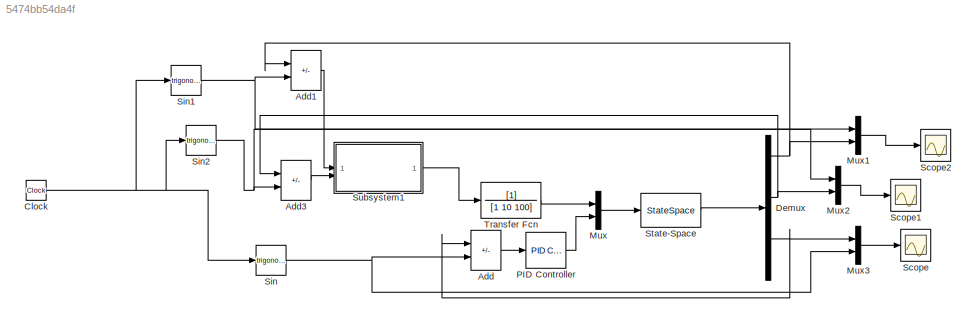
MODEL slx_5474bb54da4f
KIND model
CONFIG AbsTol = auto
CONFIG EnableMultiTasking = off
CONFIG FixedStep = auto
CONFIG MaxStep = auto
CONFIG MinStep = auto
CONFIG RelTol = 1e-3
CONFIG SampleTimeConstraint = Unconstrained
CONFIG SolverName = VariableStepAuto
CONFIG StartTime = 0.0
CONFIG StopTime = 100
BLOCK [Sum] Add
  IconShape = rectangular
  Inputs = -+
BLOCK [Sum] Add1
  IconShape = rectangular
  Inputs = -+
BLOCK [Sum] Add3
  IconShape = rectangular
  Inputs = -+
BLOCK [Clock] Clock
BLOCK [Demux] Demux
  Outputs = 6
BLOCK [Mux] Mux
  DisplayOption = bar
  Inputs = 2
BLOCK [Mux] Mux1
  DisplayOption = bar
  Inputs = 2
BLOCK [Mux] Mux2
  DisplayOption = bar
  Inputs = 2
BLOCK [Mux] Mux3
  DisplayOption = bar
  Inputs = 2
BLOCK [Reference] PID Controller  REF=slpidlib/PID Controller
  LibrarySourceBlock = simulink/Continuous/PID Controller
  SourceBlock = slpidlib/PID Controller
  SourceType = PID 1dof
BLOCK [Scope] Scope
  Floating = off
  NumInputPorts = 1
  ScopeSpecificationString = Simulink.scopes.TimeScopeBlockCfg('CurrentConfiguration', extmgr.ConfigurationSet(extmgr.Configuration('Core','General UI',true),extmgr.Configuration('Core','Source UI',true),extmgr.Configuration('Sources','WiredSimulink',true),extmgr.Configuration('Visuals','Time Domain',true,'SerializedDisplays',{struct('MinYLimReal','-1.5386','MaxYLimReal','1.48373','YLabelReal','','MinYLimMag','0.00000','MaxYL...<+1512ch>
BLOCK [Scope] Scope1
  Floating = off
  NumInputPorts = 1
  ScopeSpecificationString = Simulink.scopes.TimeScopeBlockCfg('CurrentConfiguration', extmgr.ConfigurationSet(extmgr.Configuration('Core','General UI',true),extmgr.Configuration('Core','Source UI',true),extmgr.Configuration('Sources','WiredSimulink',true,'DataLoggingVariableName','ScopeData1'),extmgr.Configuration('Visuals','Time Domain',true,'SerializedDisplays',{struct('MinYLimReal','-38133456878183608839043959212735236931...<+1880ch>
BLOCK [Scope] Scope2
  Floating = off
  NumInputPorts = 1
  ScopeSpecificationString = Simulink.scopes.TimeScopeBlockCfg('CurrentConfiguration', extmgr.ConfigurationSet(extmgr.Configuration('Core','General UI',true),extmgr.Configuration('Core','Source UI',true),extmgr.Configuration('Sources','WiredSimulink',true,'DataLoggingVariableName','ScopeData2'),extmgr.Configuration('Visuals','Time Domain',true,'SerializedDisplays',{struct('MinYLimReal','-72815008614150164692659575432338441502...<+1866ch>
BLOCK [Trigonometry] Sin
BLOCK [Trigonometry] Sin1
BLOCK [Trigonometry] Sin2
BLOCK [StateSpace] State-Space
  A = A
  B = B
  C = [1 0 0 0 0 0;0 1 0 0 0 0;0 0 1 0 0 0; 0 0 0 1 0 0 ; 0 0 0 0 1 0 ;  0 0 0 0 0 1]
  D = zeros(6,2)
  InitialCondition = 0
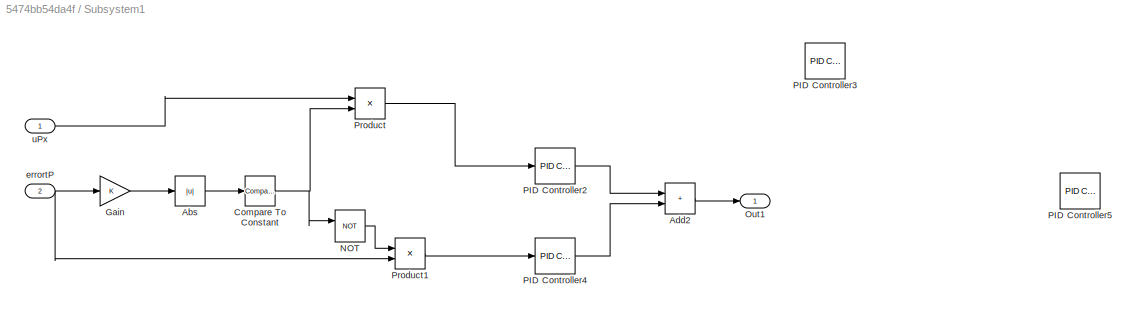
BLOCK [SubSystem] Subsystem1
BLOCK [Abs] Subsystem1/Abs
  SaturateOnIntegerOverflow = off
BLOCK [Sum] Subsystem1/Add2
  IconShape = rectangular
BLOCK [Reference] Subsystem1/Compare To Constant  REF=simulink/Logic and Bit
Operations/Compare
To Constant
  SourceBlock = simulink/Logic and Bit\nOperations/Compare\nTo Constant
  SourceType = Compare To Constant
BLOCK [Gain] Subsystem1/Gain
BLOCK [Logic] Subsystem1/NOT
  AllPortsSameDT = off
  Operator = NOT
  OutDataTypeStr = boolean
BLOCK [Outport] Subsystem1/Out1
BLOCK [Reference] Subsystem1/PID Controller2  REF=slpidlib/PID Controller
  LibrarySourceBlock = simulink/Continuous/PID Controller
  SourceBlock = slpidlib/PID Controller
  SourceType = PID 1dof
BLOCK [Reference] Subsystem1/PID Controller3  REF=slpidlib/PID Controller
  Commented = on
  LibrarySourceBlock = simulink/Continuous/PID Controller
  SourceBlock = slpidlib/PID Controller
  SourceType = PID 1dof
BLOCK [Reference] Subsystem1/PID Controller4  REF=slpidlib/PID Controller
  LibrarySourceBlock = simulink/Continuous/PID Controller
  SourceBlock = slpidlib/PID Controller
  SourceType = PID 1dof
BLOCK [Reference] Subsystem1/PID Controller5  REF=slpidlib/PID Controller
  Commented = on
  LibrarySourceBlock = simulink/Continuous/PID Controller
  SourceBlock = slpidlib/PID Controller
  SourceType = PID 1dof
BLOCK [Product] Subsystem1/Product
BLOCK [Product] Subsystem1/Product1
BLOCK [Inport] Subsystem1/errortP
  Port = 2
BLOCK [Inport] Subsystem1/uPx
BLOCK [TransferFcn] Transfer Fcn
  Denominator = [1 10 100]
LINE Add1:1 -> Subsystem1:1
LINE Add3:1 -> Subsystem1:2
LINE Add:1 -> PID Controller:1
NET Clock:1 -> Sin1:1, Sin2:1, Sin:1
NET Demux:1 -> Add1:1, Mux1:2
NET Demux:3 -> Add3:1, Mux2:2
NET Demux:5 -> Add:1, Mux3:1
LINE Mux1:1 -> Scope2:1
LINE Mux2:1 -> Scope1:1
LINE Mux3:1 -> Scope:1
LINE Mux:1 -> State-Space:1
LINE PID Controller:1 -> Mux:2
NET Sin1:1 -> Add1:2, Mux1:1
NET Sin2:1 -> Add3:2, Mux2:1
NET Sin:1 -> Add:2, Mux3:2
LINE State-Space:1 -> Demux:1
LINE Subsystem1/Abs:1 -> Subsystem1/Compare To Constant:1
LINE Subsystem1/Add2:1 -> Subsystem1/Out1:1
NET Subsystem1/Compare To Constant:1 -> Subsystem1/NOT:1, Subsystem1/Product:2
LINE Subsystem1/Gain:1 -> Subsystem1/Abs:1
LINE Subsystem1/NOT:1 -> Subsystem1/Product1:1
LINE Subsystem1/PID Controller2:1 -> Subsystem1/Add2:1
LINE Subsystem1/PID Controller4:1 -> Subsystem1/Add2:2
LINE Subsystem1/Product1:1 -> Subsystem1/PID Controller4:1
LINE Subsystem1/Product:1 -> Subsystem1/PID Controller2:1
NET Subsystem1/errortP:1 -> Subsystem1/Gain:1, Subsystem1/Product1:2
LINE Subsystem1/uPx:1 -> Subsystem1/Product:1
LINE Subsystem1:1 -> Transfer Fcn:1
LINE Transfer Fcn:1 -> Mux:1
note: NET lines group one-source signal fan-out (src -> all destinations, sorted); 1:1 wires keep LINE
